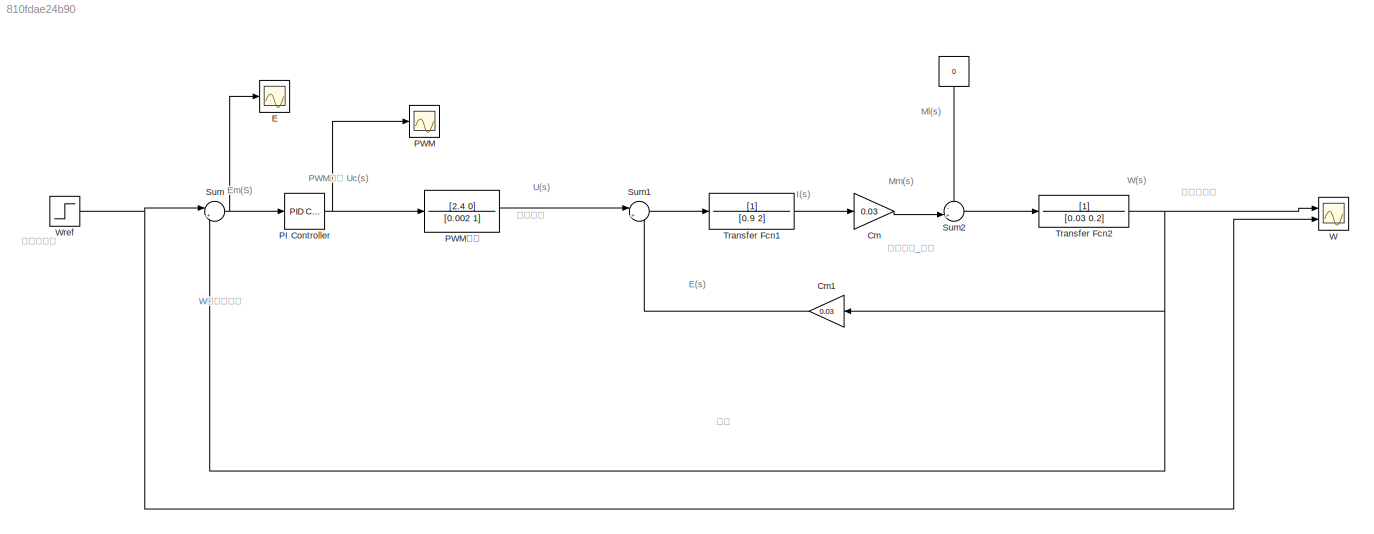
MODEL slx_810fdae24b90
KIND model
CONFIG AbsTol = auto
CONFIG EnableMultiTasking = off
CONFIG FixedStep = auto
CONFIG MaxStep = auto
CONFIG MinStep = auto
CONFIG RelTol = 1e-3
CONFIG SampleTimeConstraint = Unconstrained
CONFIG Solver = VariableStepAuto
CONFIG SolverName = VariableStepAuto
CONFIG StartTime = 0.0
CONFIG StopTime = 10.0
BLOCK [Constant]  
  Value = 0
BLOCK [Gain] Cm
  Gain = 0.03
  OutDataTypeStr = Inherit: Inherit via internal rule
  ParamDataTypeStr = Inherit: Inherit via internal rule
  SaturateOnIntegerOverflow = off
BLOCK [Gain] Cm1
  Gain = 0.03
  OutDataTypeStr = Inherit: Inherit via internal rule
  ParamDataTypeStr = Inherit: Inherit via internal rule
  SaturateOnIntegerOverflow = off
BLOCK [Scope] E
  Floating = off
  NumInputPorts = 1
  Ports = [1]
  ScopeSpecificationString = Simulink.scopes.TimeScopeBlockCfg('CurrentConfiguration', extmgr.ConfigurationSet(extmgr.Configuration('Core','General UI',true),extmgr.Configuration('Core','Source UI',true),extmgr.Configuration('Sources','WiredSimulink',true,'DataLoggingVariableName','ScopeData2'),extmgr.Configuration('Visuals','Time Domain',true,'SerializedDisplays',{struct('MinYLimReal','-0.59166','MaxYLimReal','1.46316','YLab...<+1442ch>
BLOCK [Reference] PI Controller  REF=simulink/Continuous/PID Controller
  Ports = [1, 1]
  SourceBlock = simulink/Continuous/PID Controller
  SourceProductBaseCode = SL
  SourceProductName = Simulink
  SourceType = PID 1dof
BLOCK [Scope] PWM
  Floating = off
  NumInputPorts = 1
  Ports = [1]
  ScopeSpecificationString = Simulink.scopes.TimeScopeBlockCfg('CurrentConfiguration', extmgr.ConfigurationSet(extmgr.Configuration('Core','General UI',true),extmgr.Configuration('Core','Source UI',true),extmgr.Configuration('Sources','WiredSimulink',true,'DataLoggingVariableName','ScopeData1'),extmgr.Configuration('Visuals','Time Domain',true,'SerializedDisplays',{struct('MinYLimReal','-17.66968','MaxYLimReal','82.88784','YL...<+1455ch>
BLOCK [TransferFcn] PWM功放
  Denominator = [0.002 1]
  Numerator = [2.4 0]
BLOCK [Sum] Sum
  IconShape = round
  InputSameDT = off
  Inputs = |+-
  OutDataTypeStr = Inherit: Inherit via internal rule
  Ports = [2, 1]
  SaturateOnIntegerOverflow = off
BLOCK [Sum] Sum1
  IconShape = round
  InputSameDT = off
  Inputs = |+-
  OutDataTypeStr = Inherit: Inherit via internal rule
  Ports = [2, 1]
  SaturateOnIntegerOverflow = off
BLOCK [Sum] Sum2
  IconShape = round
  InputSameDT = off
  Inputs = -+|
  OutDataTypeStr = Inherit: Inherit via internal rule
  Ports = [2, 1]
  SaturateOnIntegerOverflow = off
BLOCK [TransferFcn] Transfer Fcn1
  Denominator = [0.9 2]
BLOCK [TransferFcn] Transfer Fcn2
  Denominator = [0.03 0.2]
BLOCK [Scope] W
  Floating = off
  NumInputPorts = 2
  Ports = [2]
  ScopeSpecificationString = Simulink.scopes.TimeScopeBlockCfg('CurrentConfiguration', extmgr.ConfigurationSet(extmgr.Configuration('Core','General UI',true),extmgr.Configuration('Core','Source UI',true),extmgr.Configuration('Sources','WiredSimulink',true),extmgr.Configuration('Visuals','Time Domain',true,'SerializedDisplays',{struct('MinYLimReal','-0.23562','MaxYLimReal','1.35727','YLabelReal','','MinYLimMag','0.00000','MaxY...<+1443ch>
BLOCK [Step] Wref
  SampleTime = 0
  Time = 0
ANNOTATION (root): W实际角速度
ANNOTATION (root): 被控对象_电机
ANNOTATION (root): 反馈
ANNOTATION (root): E(s)
ANNOTATION (root): Em(S)
ANNOTATION (root): I(s)
ANNOTATION (root): Ml(s)
ANNOTATION (root): Mm(s)
ANNOTATION (root): PWM电压 Uc(s)
ANNOTATION (root): U(s)
ANNOTATION (root): W(s)
ANNOTATION (root): 参考角速度
ANNOTATION (root): 实际角速度
ANNOTATION (root): 输入电压
LINE  :1 -> Sum2:1
LINE Cm1:1 -> Sum1:2
LINE Cm:1 -> Sum2:2
NET PI Controller:1 -> PWM:1, PWM功放:1
LINE PWM功放:1 -> Sum1:1
LINE Sum1:1 -> Transfer Fcn1:1
LINE Sum2:1 -> Transfer Fcn2:1
NET Sum:1 -> E:1, PI Controller:1
LINE Transfer Fcn1:1 -> Cm:1
NET Transfer Fcn2:1 -> Cm1:1, Sum:2, W:1
NET Wref:1 -> Sum:1, W:2
note: NET lines group one-source signal fan-out (src -> all destinations, sorted); 1:1 wires keep LINE
